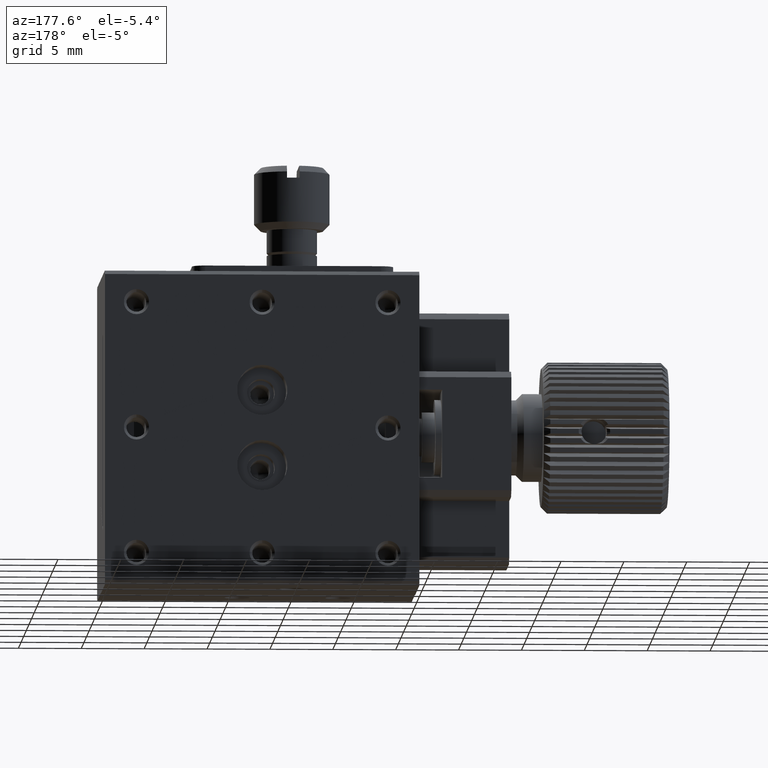
[diagram: clean part render]
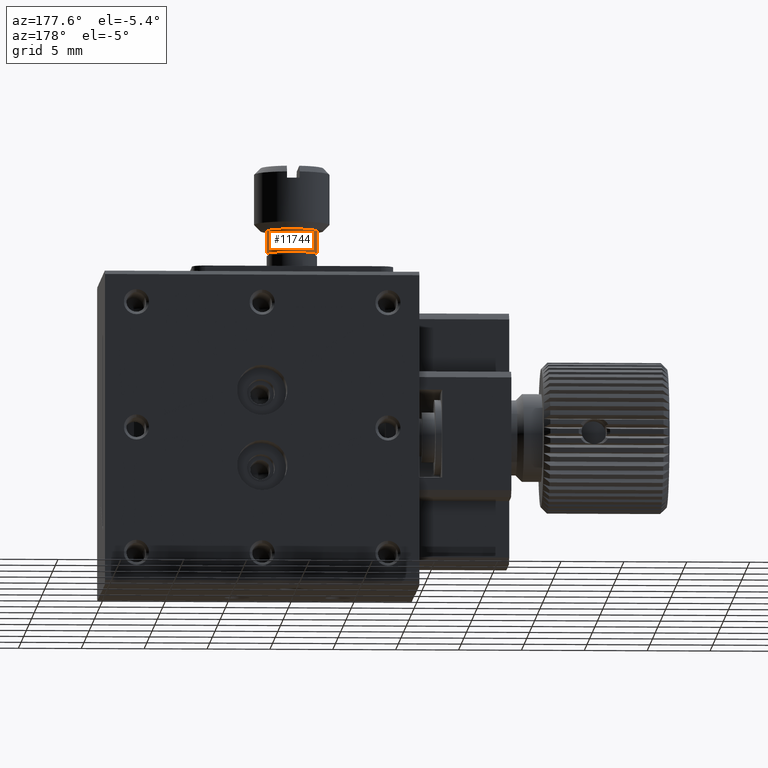
[diagram: same view with one face highlighted and labeled with its STEP entity id]
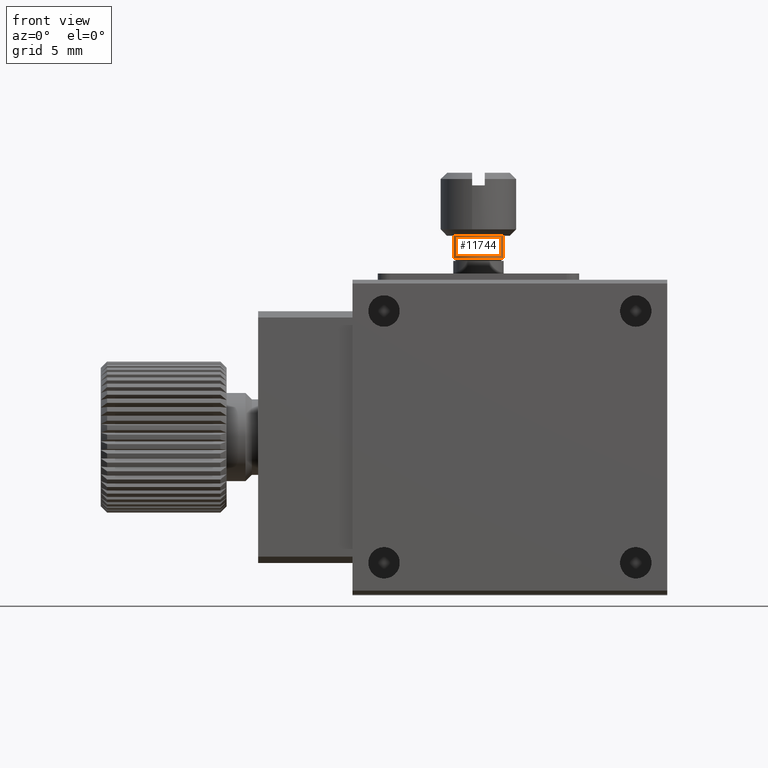
[diagram: same view with one face highlighted and labeled with its STEP entity id]
A machine part, auxiliary view. The second image highlights one B-rep face of the part: STEP entity #11744.
A second angle (front view) of the same face is appended — the face is thin or edge-on in the first view.
In plain terms, the highlighted cylindrical surface (bore or boss wall) has radius 2 mm, axis along (0, 0, -1).
Its self-contained STEP definition (entity closure, byte-faithful):
#494 = CARTESIAN_POINT ( 'NONE',  ( 10.00000000000000000, 11.50000000000000000, 1.700000000028012659 ) ) ;
#1137 = DIRECTION ( 'NONE',  ( -1.000000000000000000, 0.000000000000000000, 0.000000000000000000 ) ) ;
#1370 = CARTESIAN_POINT ( 'NONE',  ( 10.00000000000000000, 11.50000000000000000, 3.500000000000000000 ) ) ;
#1523 = AXIS2_PLACEMENT_3D ( 'NONE', #1370, #3063, #10655 ) ;
#2242 = VERTEX_POINT ( 'NONE', #10650 ) ;
#2329 = EDGE_LOOP ( 'NONE', ( #3163 ) ) ;
#3063 = DIRECTION ( 'NONE',  ( 0.000000000000000000, 0.000000000000000000, -1.000000000000000000 ) ) ;
#3163 = ORIENTED_EDGE ( 'NONE', *, *, #7134, .T. ) ;
#4831 = FACE_OUTER_BOUND ( 'NONE', #11110, .T. ) ;
#5882 = FACE_OUTER_BOUND ( 'NONE', #2329, .T. ) ;
#5978 = CARTESIAN_POINT ( 'NONE',  ( 8.000000000000000000, 11.50000000000000000, 3.500000000000000000 ) ) ;
#6294 = DIRECTION ( 'NONE',  ( 1.000000000000000000, 0.000000000000000000, -1.084202172516072917E-16 ) ) ;
#6642 = CYLINDRICAL_SURFACE ( 'NONE', #9613, 2.000000000000000000 ) ;
#7134 = EDGE_CURVE ( 'NONE', #11714, #11714, #11069, .T. ) ;
#7271 = EDGE_CURVE ( 'NONE', #2242, #2242, #11475, .T. ) ;
#9613 = AXIS2_PLACEMENT_3D ( 'NONE', #9681, #10438, #1137 ) ;
#9681 = CARTESIAN_POINT ( 'NONE',  ( 10.00000000000000000, 11.50000000000000000, -2.500000000000000000 ) ) ;
#10071 = AXIS2_PLACEMENT_3D ( 'NONE', #494, #11032, #6294 ) ;
#10438 = DIRECTION ( 'NONE',  ( 0.000000000000000000, 0.000000000000000000, -1.000000000000000000 ) ) ;
#10650 = CARTESIAN_POINT ( 'NONE',  ( 11.99999999994361133, 11.50000000000000000, 1.700000000028012437 ) ) ;
#10655 = DIRECTION ( 'NONE',  ( -1.000000000000000000, 0.000000000000000000, 0.000000000000000000 ) ) ;
#11032 = DIRECTION ( 'NONE',  ( -0.000000000000000000, -0.000000000000000000, -1.000000000000000000 ) ) ;
#11069 = CIRCLE ( 'NONE', #1523, 2.000000000000000000 ) ;
#11110 = EDGE_LOOP ( 'NONE', ( #11324 ) ) ;
#11324 = ORIENTED_EDGE ( 'NONE', *, *, #7271, .F. ) ;
#11475 = CIRCLE ( 'NONE', #10071, 1.999999999943611106 ) ;
#11714 = VERTEX_POINT ( 'NONE', #5978 ) ;
#11744 = ADVANCED_FACE ( 'NONE', ( #5882, #4831 ), #6642, .T. ) ;